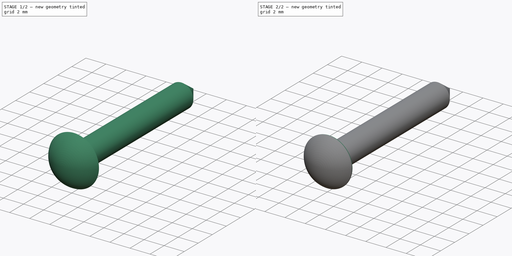
[diagram: build sequence overview — one tinted view per stage of 2, left to right]
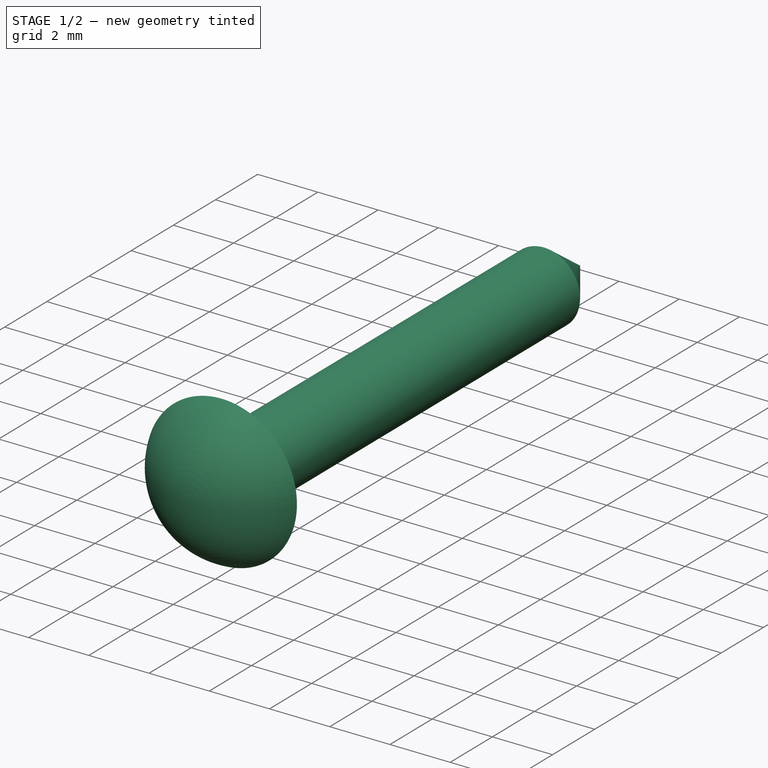
[diagram: stage 1 of 2 — iso view after this stage's code; geometry added in this stage tinted green]
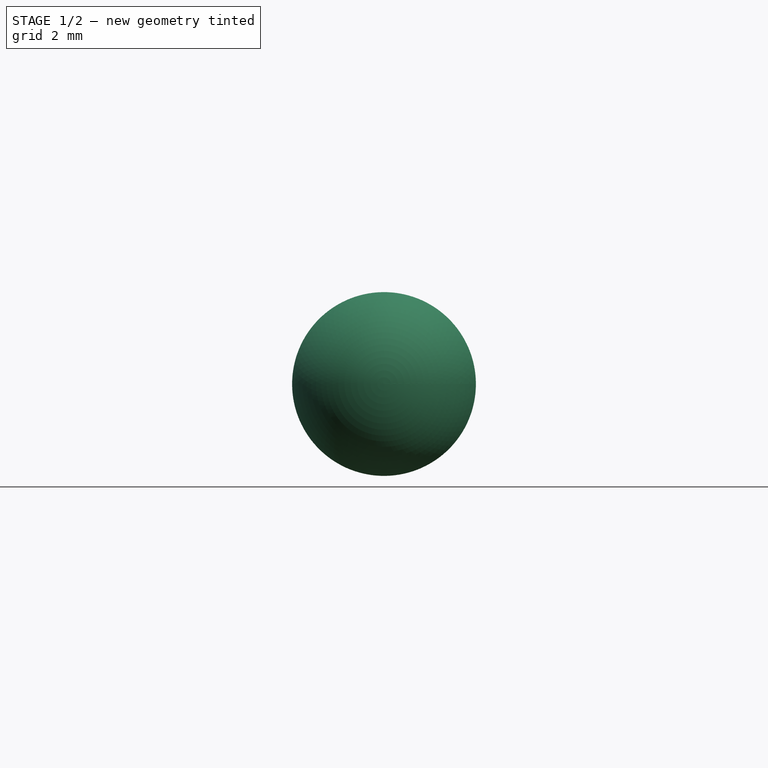
[diagram: stage 1 of 2 — front view after this stage's code; geometry added in this stage tinted green]
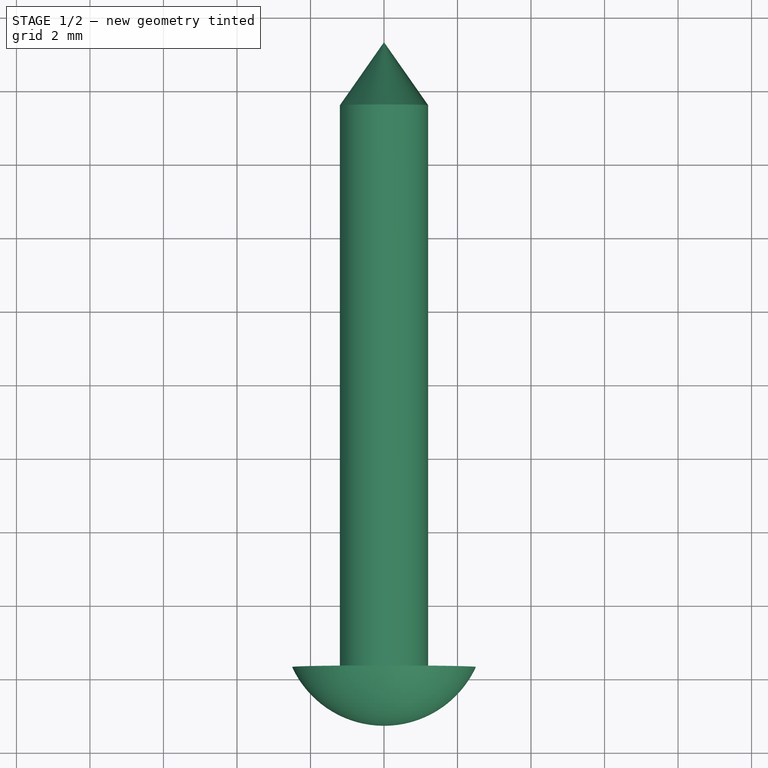
[diagram: stage 1 of 2 — top view after this stage's code; geometry added in this stage tinted green]
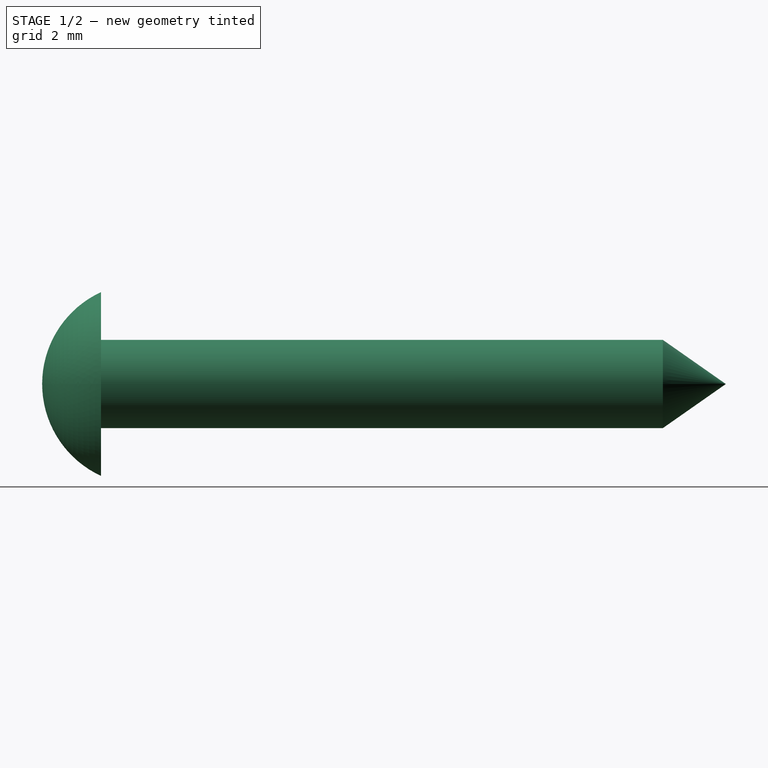
[diagram: stage 1 of 2 — right view after this stage's code; geometry added in this stage tinted green]
FCSTD DOCUMENT  (FreeCAD 1.0R39285 (Git))
Label: SingleAxel
License: All rights reserved
LicenseURL: https://en.wikipedia.org/wiki/All_rights_reserved
objects: App::Link×1, Sketcher::SketchObject×1, PartDesign::Revolution×1, PartDesign::Fillet×1, PartDesign::Body×1
note: 9 computed .brp shape members not serialized (recipe doc carries the construction recipe); baked Part::Feature solids carry a one-line shape summary decoded from their .brp
EXTERNAL_REF file=../../Dimentions.FCStd obj=dd003

FEATURE [App::Link] Link  label="AxlePin"
  LinkedObject = -> <external ../../Dimentions.FCStd>#dd003
FEATURE [Sketcher::SketchObject] Sketch
  ArcFitTolerance = 1e-06
  AttachmentSupport = -> [XY_Plane]
  FullyConstrained = true
  MakeInternals = false
  MapMode = 5
  expr: Constraints[16] = <<AxlePin>>.StockLength
  expr: Constraints[20] = <<AxlePin>>.HeadThickness
  expr: Constraints[21] = <<AxlePin>>.PinHeadDiameter
  expr: Constraints[23] = <<AxlePin>>.ShaftDiameter
  sketch-geometry (9):
    g0: LineSegment StartX=0 StartY=9.3 StartZ=0 EndX=-4e-16 EndY=-9.3 EndZ=0
    g1: ArcOfCircle CenterX=2e-16 CenterY=-6.54688 CenterZ=0 NormalX=0 NormalY=0 NormalZ=1 AngleXU=0 Radius=2.75312 StartAngle=4.71239 EndAngle=5.85102
    g2: LineSegment StartX=2.5 StartY=-7.7 StartZ=0 EndX=1.2 EndY=-7.7 EndZ=0
    g3: LineSegment StartX=1.2 StartY=-7.7 StartZ=0 EndX=1.2 EndY=7.58622 EndZ=0
    g4: LineSegment StartX=1.2 StartY=7.58622 StartZ=0 EndX=0 EndY=9.3 EndZ=0
    g5: LineSegment [constr] StartX=0 StartY=9.3 StartZ=0 EndX=-1.2 EndY=7.58622 EndZ=0
    g6: LineSegment [constr] StartX=-1.2 StartY=7.58622 StartZ=0 EndX=-1.2 EndY=-7.7 EndZ=0
    g7: LineSegment [constr] StartX=-1.2 StartY=-7.7 StartZ=0 EndX=-2.5 EndY=-7.7 EndZ=0
    g8: LineSegment [constr] StartX=-2.5 StartY=-7.7 StartZ=0 EndX=-4e-16 EndY=-9.3 EndZ=0
  constraints (24):
    c: PointOnObject(g0,g-2)
    c: Perpendicular(g0,g1) = 1.5708
    c: Horizontal(g2)
    c: Coincident(g2,g3)
    c: Vertical(g3)
    c: Coincident(g3,g4)
    c: Coincident(g4,g0)
    c: Coincident(g0,g5)
    c: Coincident(g5,g6)
    c: Vertical(g6)
    c: Coincident(g6,g7)
    c: Horizontal(g7)
    c: Coincident(g7,g8)
    c: Coincident(g8,g0)
    c: Equal(g7,g2)
    c: Symmetric(g0,g0,g-1)
    c: DistanceY(g0,g0) = 18.6
    c: Symmetric(g5,g3,g-2)
    c: Equal(g6,g3)
    c: Angle(g4,g3) = 2.53073
    c: DistanceY(g0,g2) = 1.6
    c: DistanceX(g7,g2) = 5
    c: Coincident(g1,g2)
    c: Distance(g5,g3) = 2.4
FEATURE [PartDesign::Revolution] Revolution
  Angle = 360
  Angle2 = 60
  Axis = (0,1,0)
  Base = (0,0,0)
  Profile = -> Sketch
  ReferenceAxis = -> Sketch [V_Axis]
  Refine = true
  Reversed = true
  Suppressed = false
  Type = 0
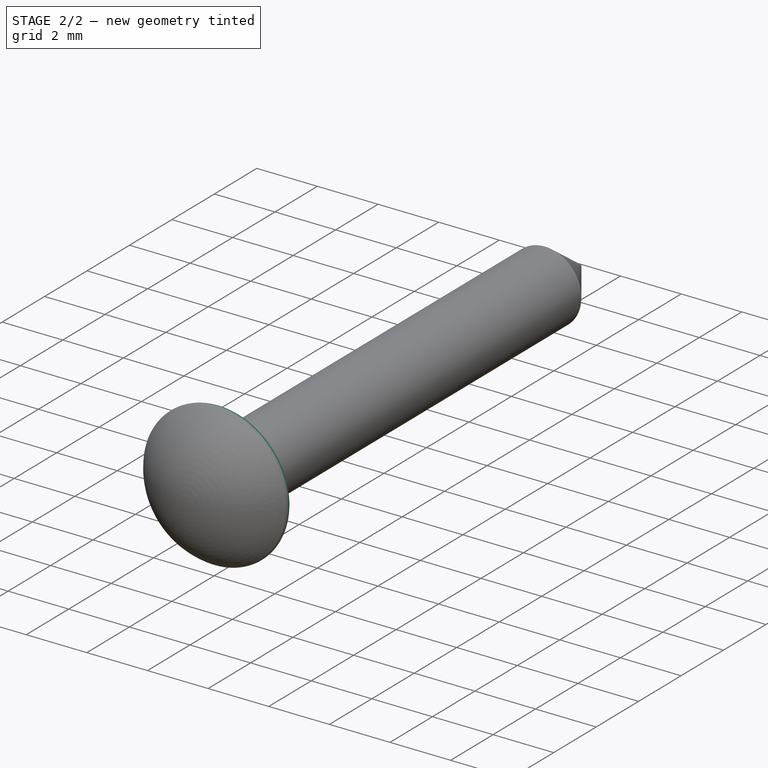
[diagram: stage 2 of 2 — iso view after this stage's code; geometry added in this stage tinted green]
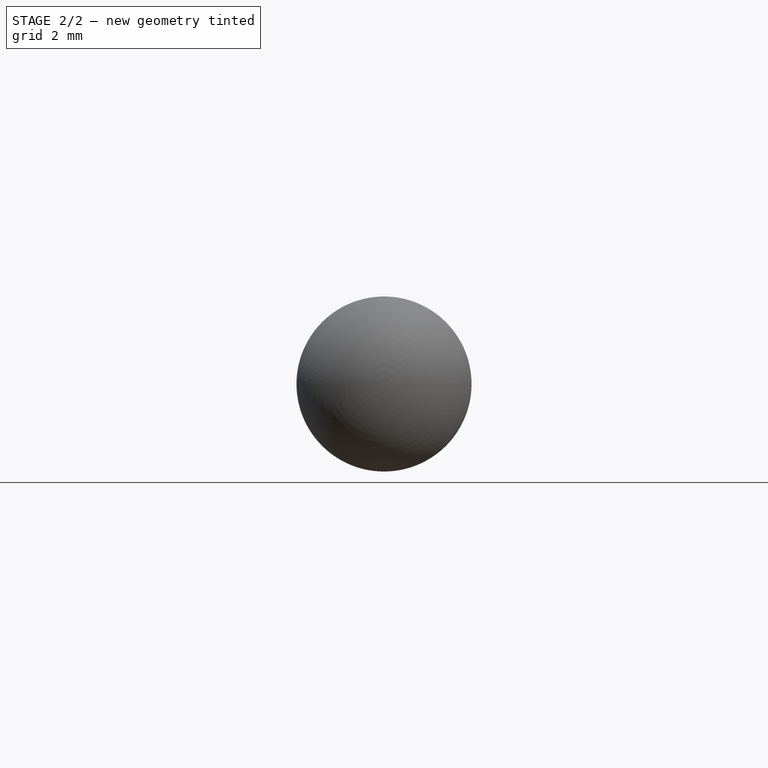
[diagram: stage 2 of 2 — front view after this stage's code; geometry added in this stage tinted green]
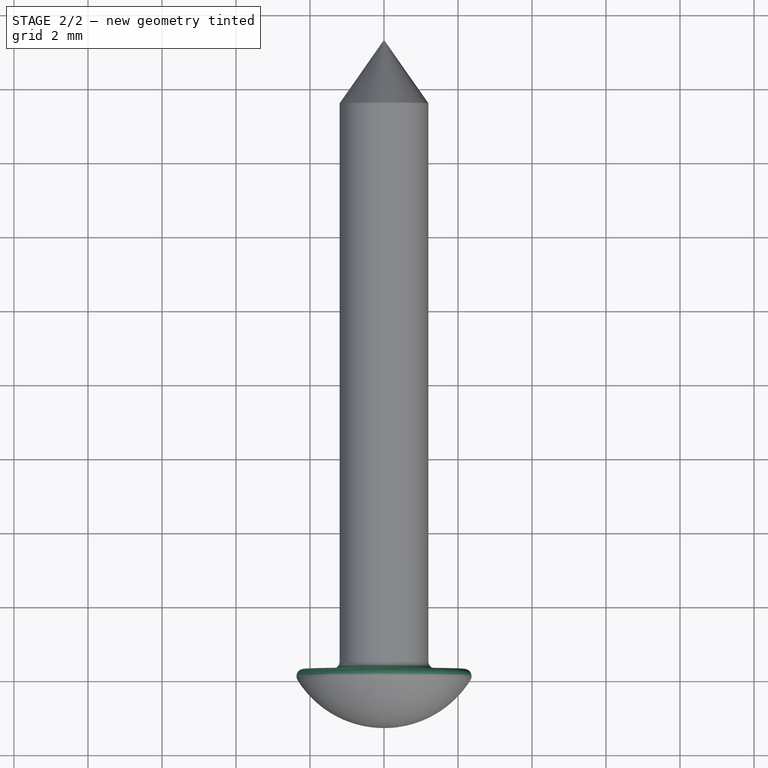
[diagram: stage 2 of 2 — top view after this stage's code; geometry added in this stage tinted green]
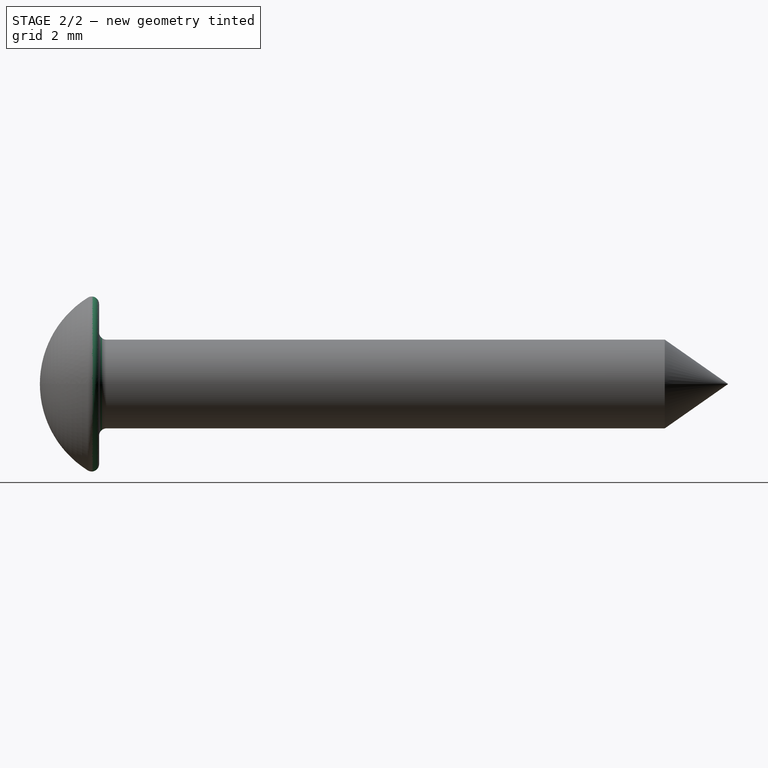
[diagram: stage 2 of 2 — right view after this stage's code; geometry added in this stage tinted green]
FEATURE [PartDesign::Fillet] Fillet
  Base = -> Revolution [Edge2,Edge4]
  BaseFeature = -> Revolution
  Radius = 0.2
  Refine = true
  SupportTransform = false
  Suppressed = false
  UseAllEdges = false
FEATURE [PartDesign::Body] Body  label="SingleAxel"
  AllowCompound = false
  Group = -> [Sketch,Revolution,Fillet]
  Origin = -> Origin
  Tip = -> Fillet
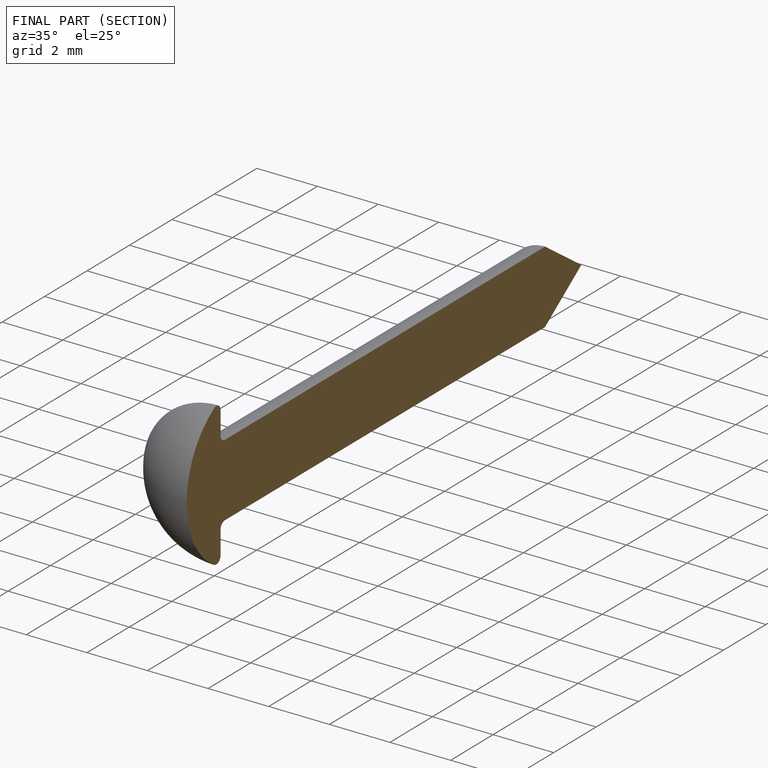
[diagram: finished part — half-section view (interior)]
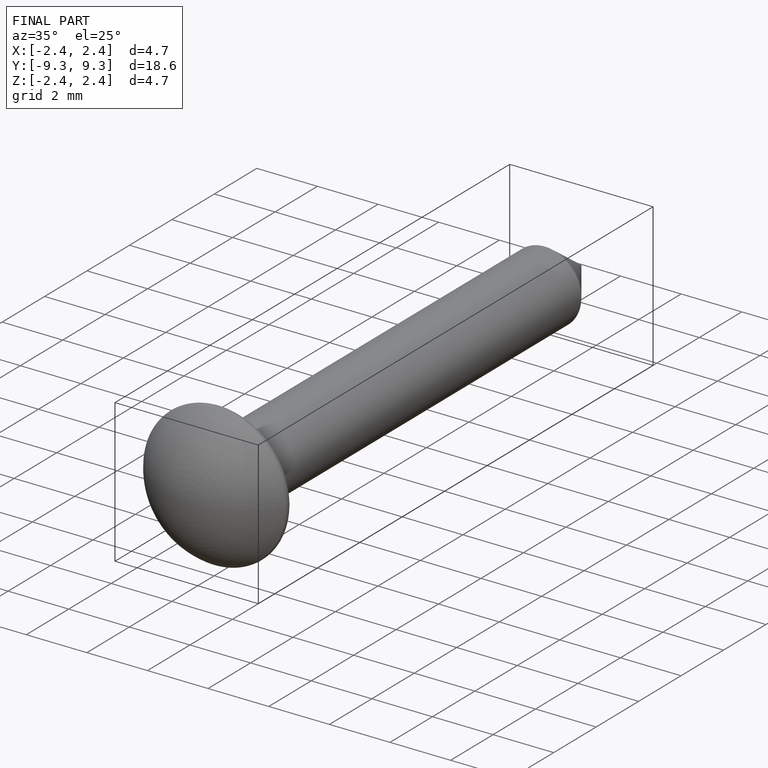
[diagram: finished part — iso view with bounding-box wireframe]
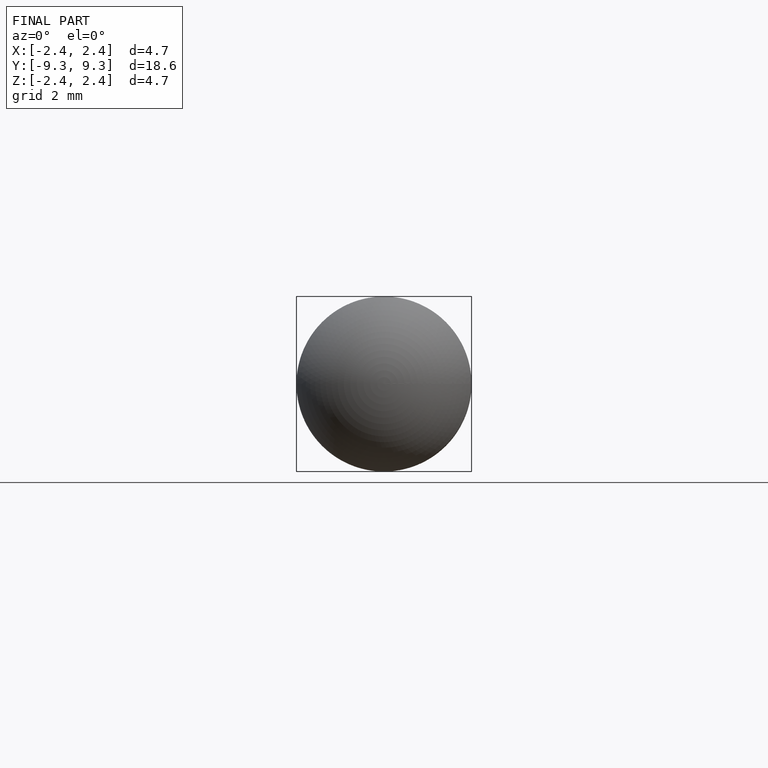
[diagram: finished part — front view with bounding-box wireframe]
